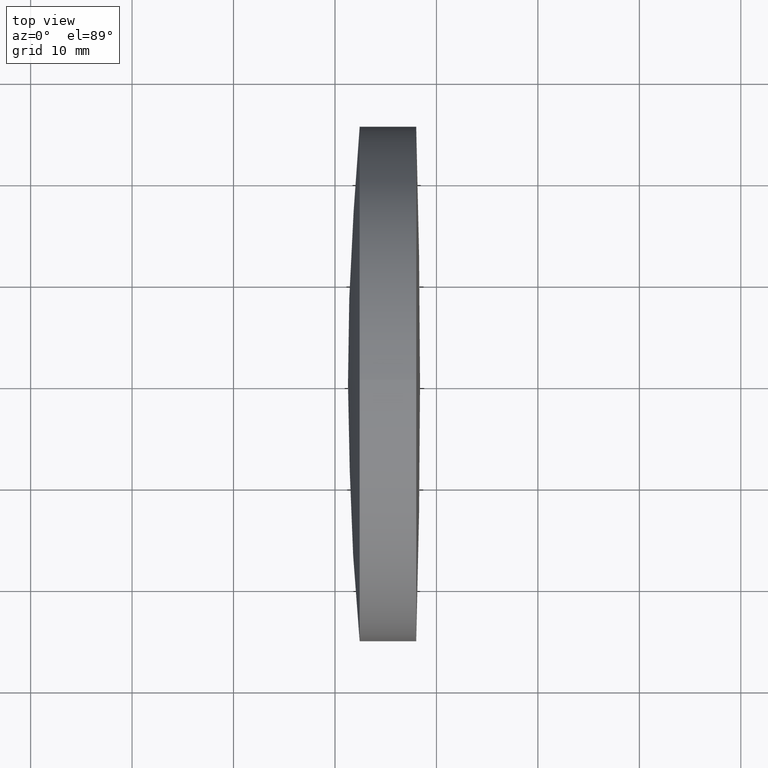
[diagram: clean part render]
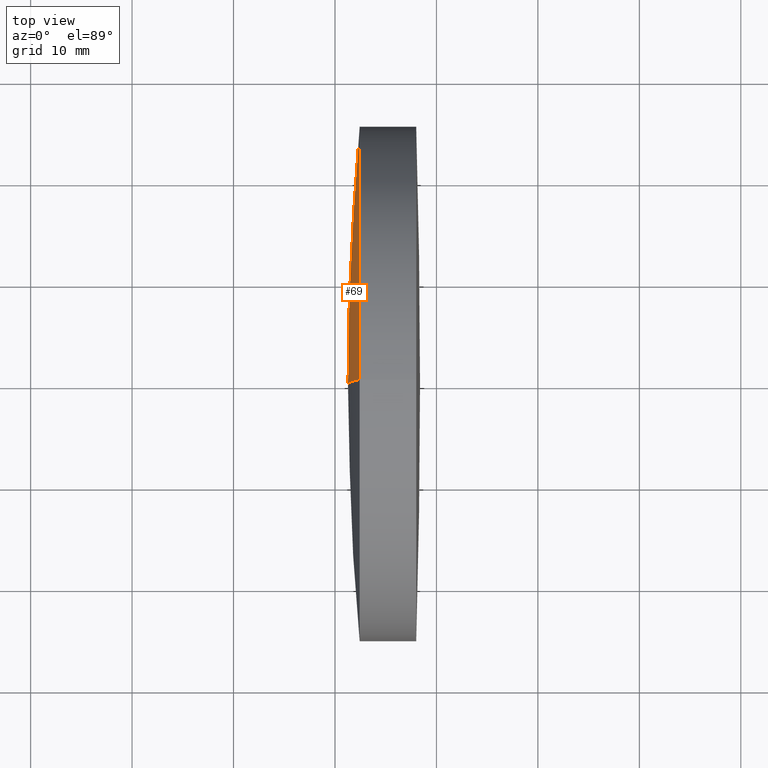
[diagram: same view with one face highlighted and labeled with its STEP entity id]
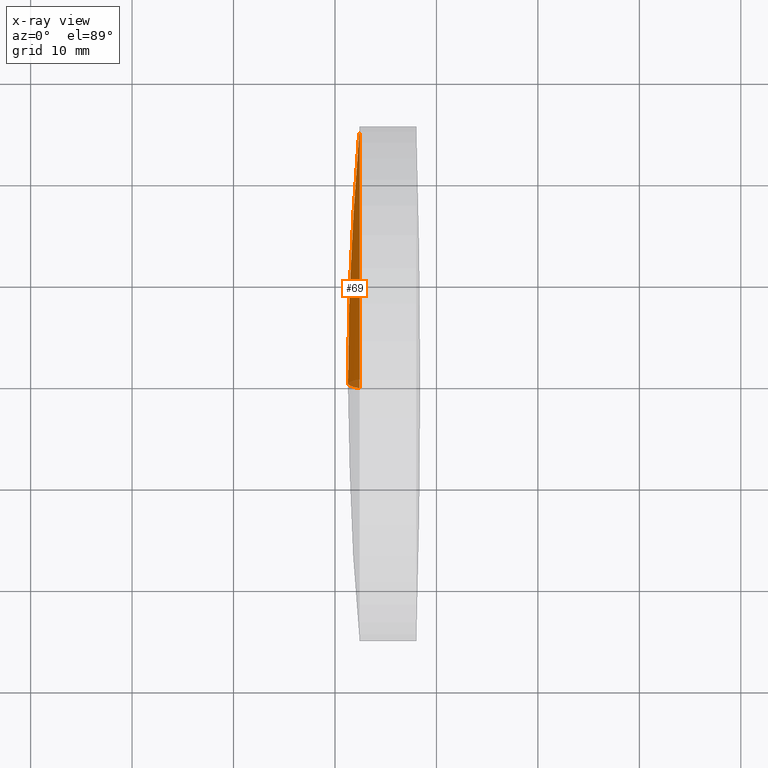
[diagram: x-ray of the same camera — body ghosted, the highlighted face saturated]
A machine part, top view. The second image highlights one B-rep face of the part: STEP entity #69.
The next image is the same camera in x-ray: the body ghosted, the highlighted face saturated — about 3% of this face is hidden behind the body in this view.
In plain terms, the highlighted spherical surface has radius 280.6 mm.
Its self-contained STEP definition (entity closure, byte-faithful):
#7 = FACE_OUTER_BOUND ( 'NONE', #294, .T. ) ;
#8 = CIRCLE ( 'NONE', #261, 25.39999999999999500 ) ;
#11 = ORIENTED_EDGE ( 'NONE', *, *, #39, .T. ) ;
#17 = DIRECTION ( 'NONE',  ( 0.0000000000000000000, 0.0000000000000000000, -1.000000000000000000 ) ) ;
#25 = VERTEX_POINT ( 'NONE', #27 ) ;
#27 = CARTESIAN_POINT ( 'NONE',  ( 661.2805592743232000, 0.0000000000000000000, 1.219721548043810700E-014 ) ) ;
#28 = CARTESIAN_POINT ( 'NONE',  ( 941.8805592743231000, 0.0000000000000000000, -4.984579111599258100E-015 ) ) ;
#30 = DIRECTION ( 'NONE',  ( 0.0000000000000000000, 1.000000000000000000, 0.0000000000000000000 ) ) ;
#39 = EDGE_CURVE ( 'NONE', #95, #25, #336, .T. ) ;
#61 = DIRECTION ( 'NONE',  ( 0.0000000000000000000, 0.0000000000000000000, 1.000000000000000000 ) ) ;
#69 = ADVANCED_FACE ( 'NONE', ( #7 ), #168, .T. ) ;
#85 = CARTESIAN_POINT ( 'NONE',  ( 941.8805592743231000, 0.0000000000000000000, -4.984579111599258100E-015 ) ) ;
#95 = VERTEX_POINT ( 'NONE', #123 ) ;
#101 = DIRECTION ( 'NONE',  ( 0.0000000000000000000, 0.0000000000000000000, 1.000000000000000000 ) ) ;
#123 = CARTESIAN_POINT ( 'NONE',  ( 662.4325319060842500, 3.110602869834266600E-015, -25.39999999999992000 ) ) ;
#139 = AXIS2_PLACEMENT_3D ( 'NONE', #28, #153, #17 ) ;
#147 = DIRECTION ( 'NONE',  ( -1.000000000000000000, -0.0000000000000000000, -0.0000000000000000000 ) ) ;
#153 = DIRECTION ( 'NONE',  ( 0.0000000000000000000, -1.000000000000000000, 0.0000000000000000000 ) ) ;
#156 = CARTESIAN_POINT ( 'NONE',  ( 662.4325319060842500, 0.0000000000000000000, 0.0000000000000000000 ) ) ;
#159 = ORIENTED_EDGE ( 'NONE', *, *, #249, .T. ) ;
#168 = SPHERICAL_SURFACE ( 'NONE', #314, 280.6000000000000200 ) ;
#221 = CARTESIAN_POINT ( 'NONE',  ( 941.8805592743231000, 0.0000000000000000000, -4.984579111599258100E-015 ) ) ;
#225 = CARTESIAN_POINT ( 'NONE',  ( 662.4325319060842500, 0.0000000000000000000, 25.39999999999991700 ) ) ;
#249 = EDGE_CURVE ( 'NONE', #283, #95, #8, .T. ) ;
#261 = AXIS2_PLACEMENT_3D ( 'NONE', #156, #147, #101 ) ;
#280 = AXIS2_PLACEMENT_3D ( 'NONE', #85, #347, #327 ) ;
#283 = VERTEX_POINT ( 'NONE', #225 ) ;
#294 = EDGE_LOOP ( 'NONE', ( #159, #11, #339 ) ) ;
#308 = CIRCLE ( 'NONE', #139, 280.6000000000000200 ) ;
#314 = AXIS2_PLACEMENT_3D ( 'NONE', #221, #30, #61 ) ;
#319 = EDGE_CURVE ( 'NONE', #283, #25, #308, .T. ) ;
#327 = DIRECTION ( 'NONE',  ( 0.0000000000000000000, -1.224646799147353200E-016, 1.000000000000000000 ) ) ;
#336 = CIRCLE ( 'NONE', #280, 280.6000000000000200 ) ;
#339 = ORIENTED_EDGE ( 'NONE', *, *, #319, .F. ) ;
#347 = DIRECTION ( 'NONE',  ( -0.0000000000000000000, 1.000000000000000000, 1.224646799147353200E-016 ) ) ;